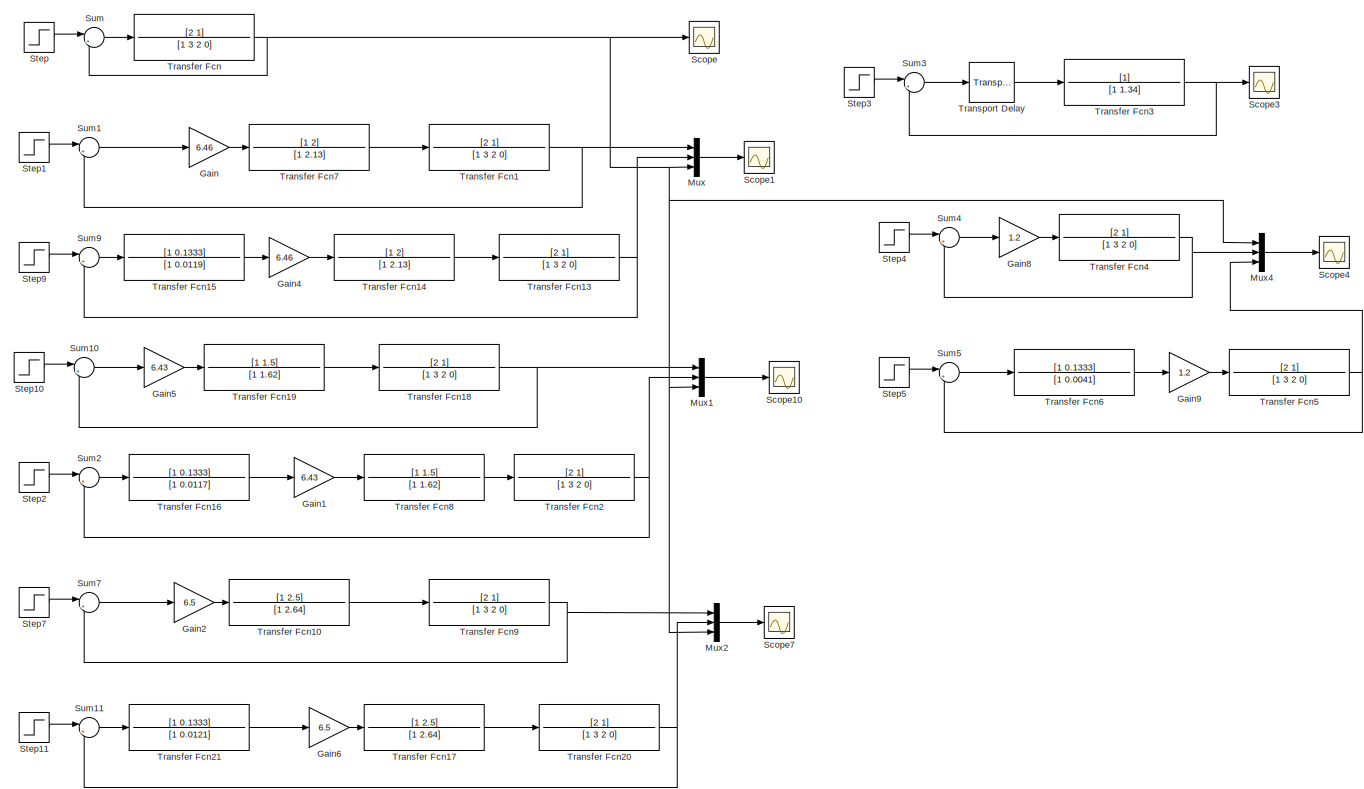
[diagram: root canvas - part 1/2, full width, middle band]
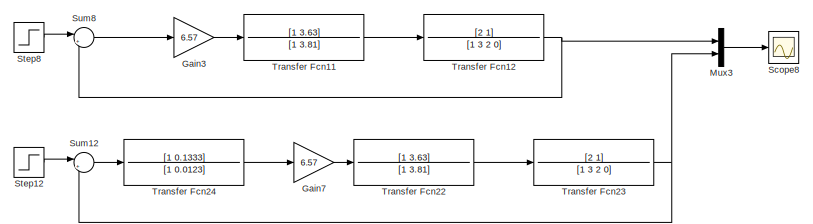
[diagram: root canvas - part 2/2, bottom left region]
MODEL slx_bb2af71fc459
KIND model
CONFIG AbsTol = auto
CONFIG EnableMultiTasking = off
CONFIG FixedStep = 0.001
CONFIG MaxStep = auto
CONFIG MinStep = auto
CONFIG RelTol = 1e-3
CONFIG SampleTimeConstraint = Unconstrained
CONFIG SolverName = FixedStepAuto
CONFIG StartTime = 0.0
CONFIG StopTime = 25
BLOCK [Gain] Gain
  Gain = 6.46
BLOCK [Gain] Gain1
  Gain = 6.43
BLOCK [Gain] Gain2
  Gain = 6.5
BLOCK [Gain] Gain3
  Gain = 6.57
BLOCK [Gain] Gain4
  Gain = 6.46
BLOCK [Gain] Gain5
  Gain = 6.43
BLOCK [Gain] Gain6
  Gain = 6.5
BLOCK [Gain] Gain7
  Gain = 6.57
BLOCK [Gain] Gain8
  Gain = 1.2
BLOCK [Gain] Gain9
  Gain = 1.2
BLOCK [Mux] Mux
  DisplayOption = bar
  Inputs = 3
BLOCK [Mux] Mux1
  DisplayOption = bar
  Inputs = 3
BLOCK [Mux] Mux2
  DisplayOption = bar
  Inputs = 3
BLOCK [Mux] Mux3
  DisplayOption = bar
  Inputs = 2
BLOCK [Mux] Mux4
  DisplayOption = bar
  Inputs = 3
BLOCK [Scope] Scope
  Floating = off
  NumInputPorts = 1
  ScopeSpecificationString = Simulink.scopes.TimeScopeBlockCfg('CurrentConfiguration', extmgr.ConfigurationSet(extmgr.Configuration('Core','General UI',true,'FigureColor',[1 1 1]),extmgr.Configuration('Core','Source UI',true),extmgr.Configuration('Sources','WiredSimulink',true),extmgr.Configuration('Visuals','Time Domain',true,'SerializedDisplays',{struct('MinYLimReal','-0.12498','MaxYLimReal','1.0929','YLabelReal','','MinYLi...<+1858ch>
BLOCK [Scope] Scope1
  Floating = off
  NumInputPorts = 1
  ScopeSpecificationString = Simulink.scopes.TimeScopeBlockCfg('CurrentConfiguration', extmgr.ConfigurationSet(extmgr.Configuration('Core','General UI',true,'FigureColor',[1 1 1]),extmgr.Configuration('Core','Source UI',true),extmgr.Configuration('Sources','WiredSimulink',true,'DataLoggingVariableName','ScopeData1'),extmgr.Configuration('Visuals','Time Domain',true,'SerializedDisplays',{struct('MinYLimReal','-0.15421','MaxYLi...<+1578ch>
BLOCK [Scope] Scope10
  Floating = off
  NumInputPorts = 1
  ScopeSpecificationString = Simulink.scopes.TimeScopeBlockCfg('CurrentConfiguration', extmgr.ConfigurationSet(extmgr.Configuration('Core','General UI',true,'FigureColor',[1 1 1]),extmgr.Configuration('Core','Source UI',true),extmgr.Configuration('Sources','WiredSimulink',true,'DataLoggingVariableName','ScopeData10'),extmgr.Configuration('Visuals','Time Domain',true,'SerializedDisplays',{struct('MinYLimReal','-0.15384','MaxYL...<+1579ch>
BLOCK [Scope] Scope3
  Floating = off
  NumInputPorts = 1
  ScopeSpecificationString = Simulink.scopes.TimeScopeBlockCfg('CurrentConfiguration', extmgr.ConfigurationSet(extmgr.Configuration('Core','General UI',true,'FigureColor',[1 1 1]),extmgr.Configuration('Core','Source UI',true),extmgr.Configuration('Sources','WiredSimulink',true,'DataLoggingVariableName','ScopeData3'),extmgr.Configuration('Visuals','Time Domain',true,'SerializedDisplays',{struct('MinYLimReal','-0.12498','MaxYLi...<+1899ch>
BLOCK [Scope] Scope4
  Floating = off
  NumInputPorts = 1
  ScopeSpecificationString = Simulink.scopes.TimeScopeBlockCfg('CurrentConfiguration', extmgr.ConfigurationSet(extmgr.Configuration('Core','General UI',true,'FigureColor',[1 1 1]),extmgr.Configuration('Core','Source UI',true),extmgr.Configuration('Sources','WiredSimulink',true,'DataLoggingVariableName','ScopeData1'),extmgr.Configuration('Visuals','Time Domain',true,'SerializedDisplays',{struct('MinYLimReal','-0.12498','MaxYLi...<+1623ch>
BLOCK [Scope] Scope7
  Floating = off
  NumInputPorts = 1
  ScopeSpecificationString = Simulink.scopes.TimeScopeBlockCfg('CurrentConfiguration', extmgr.ConfigurationSet(extmgr.Configuration('Core','General UI',true,'FigureColor',[1 1 1]),extmgr.Configuration('Core','Source UI',true),extmgr.Configuration('Sources','WiredSimulink',true,'DataLoggingVariableName','ScopeData7'),extmgr.Configuration('Visuals','Time Domain',true,'SerializedDisplays',{struct('MinYLimReal','-0.1546','MaxYLim...<+1576ch>
BLOCK [Scope] Scope8
  Floating = off
  NumInputPorts = 1
  ScopeSpecificationString = Simulink.scopes.TimeScopeBlockCfg('CurrentConfiguration', extmgr.ConfigurationSet(extmgr.Configuration('Core','General UI',true,'FigureColor',[1 1 1]),extmgr.Configuration('Core','Source UI',true),extmgr.Configuration('Sources','WiredSimulink',true,'DataLoggingVariableName','ScopeData8'),extmgr.Configuration('Visuals','Time Domain',true,'SerializedDisplays',{struct('MinYLimReal','-0.15505','MaxYLi...<+1579ch>
BLOCK [Step] Step
  SampleTime = 0
  Time = 0
BLOCK [Step] Step1
  SampleTime = 0
  Time = 0
BLOCK [Step] Step10
  SampleTime = 0
  Time = 0
BLOCK [Step] Step11
  SampleTime = 0
  Time = 0
BLOCK [Step] Step12
  SampleTime = 0
  Time = 0
BLOCK [Step] Step2
  SampleTime = 0
  Time = 0
BLOCK [Step] Step3
  SampleTime = 0
  Time = 0
BLOCK [Step] Step4
  SampleTime = 0
  Time = 0
BLOCK [Step] Step5
  SampleTime = 0
  Time = 0
BLOCK [Step] Step7
  SampleTime = 0
  Time = 0
BLOCK [Step] Step8
  SampleTime = 0
  Time = 0
BLOCK [Step] Step9
  SampleTime = 0
  Time = 0
BLOCK [Sum] Sum
  Inputs = |+-
BLOCK [Sum] Sum1
  Inputs = |+-
BLOCK [Sum] Sum10
  Inputs = |+-
BLOCK [Sum] Sum11
  Inputs = |+-
BLOCK [Sum] Sum12
  Inputs = |+-
BLOCK [Sum] Sum2
  Inputs = |+-
BLOCK [Sum] Sum3
  Inputs = |+-
BLOCK [Sum] Sum4
  Inputs = |+-
BLOCK [Sum] Sum5
  Inputs = |+-
BLOCK [Sum] Sum7
  Inputs = |+-
BLOCK [Sum] Sum8
  Inputs = |+-
BLOCK [Sum] Sum9
  Inputs = |+-
BLOCK [TransferFcn] Transfer Fcn
  Denominator = [1 3 2 0]
  Numerator = [2 1]
BLOCK [TransferFcn] Transfer Fcn1
  Denominator = [1 3 2 0]
  Numerator = [2 1]
BLOCK [TransferFcn] Transfer Fcn10
  Denominator = [1 2.64]
  Numerator = [1 2.5]
BLOCK [TransferFcn] Transfer Fcn11
  Denominator = [1 3.81]
  Numerator = [1 3.63]
BLOCK [TransferFcn] Transfer Fcn12
  Denominator = [1 3 2 0]
  Numerator = [2 1]
BLOCK [TransferFcn] Transfer Fcn13
  Denominator = [1 3 2 0]
  Numerator = [2 1]
BLOCK [TransferFcn] Transfer Fcn14
  Denominator = [1 2.13]
  Numerator = [1 2]
BLOCK [TransferFcn] Transfer Fcn15
  Denominator = [1 0.0119]
  Numerator = [1 0.1333]
BLOCK [TransferFcn] Transfer Fcn16
  Denominator = [1 0.0117]
  Numerator = [1 0.1333]
BLOCK [TransferFcn] Transfer Fcn17
  Denominator = [1 2.64]
  Numerator = [1 2.5]
BLOCK [TransferFcn] Transfer Fcn18
  Denominator = [1 3 2 0]
  Numerator = [2 1]
BLOCK [TransferFcn] Transfer Fcn19
  Denominator = [1 1.62]
  Numerator = [1 1.5]
BLOCK [TransferFcn] Transfer Fcn2
  Denominator = [1 3 2 0]
  Numerator = [2 1]
BLOCK [TransferFcn] Transfer Fcn20
  Denominator = [1 3 2 0]
  Numerator = [2 1]
BLOCK [TransferFcn] Transfer Fcn21
  Denominator = [1 0.0121]
  Numerator = [1 0.1333]
BLOCK [TransferFcn] Transfer Fcn22
  Denominator = [1 3.81]
  Numerator = [1 3.63]
BLOCK [TransferFcn] Transfer Fcn23
  Denominator = [1 3 2 0]
  Numerator = [2 1]
BLOCK [TransferFcn] Transfer Fcn24
  Denominator = [1 0.0123]
  Numerator = [1 0.1333]
BLOCK [TransferFcn] Transfer Fcn3
  Denominator = [1 1.34]
BLOCK [TransferFcn] Transfer Fcn4
  Denominator = [1 3 2 0]
  Numerator = [2 1]
BLOCK [TransferFcn] Transfer Fcn5
  Denominator = [1 3 2 0]
  Numerator = [2 1]
BLOCK [TransferFcn] Transfer Fcn6
  Denominator = [1 0.0041]
  Numerator = [1 0.1333]
BLOCK [TransferFcn] Transfer Fcn7
  Denominator = [1 2.13]
  Numerator = [1 2]
BLOCK [TransferFcn] Transfer Fcn8
  Denominator = [1 1.62]
  Numerator = [1 1.5]
BLOCK [TransferFcn] Transfer Fcn9
  Denominator = [1 3 2 0]
  Numerator = [2 1]
BLOCK [TransportDelay] Transport Delay
  DelayTime = 0.2
LINE Gain1:1 -> Transfer Fcn8:1
LINE Gain2:1 -> Transfer Fcn10:1
LINE Gain3:1 -> Transfer Fcn11:1
LINE Gain4:1 -> Transfer Fcn14:1
LINE Gain5:1 -> Transfer Fcn19:1
LINE Gain6:1 -> Transfer Fcn17:1
LINE Gain7:1 -> Transfer Fcn22:1
LINE Gain8:1 -> Transfer Fcn4:1
LINE Gain9:1 -> Transfer Fcn5:1
LINE Gain:1 -> Transfer Fcn7:1
LINE Mux1:1 -> Scope10:1
LINE Mux2:1 -> Scope7:1
LINE Mux3:1 -> Scope8:1
LINE Mux4:1 -> Scope4:1
LINE Mux:1 -> Scope1:1
LINE Step10:1 -> Sum10:1
LINE Step11:1 -> Sum11:1
LINE Step12:1 -> Sum12:1
LINE Step1:1 -> Sum1:1
LINE Step2:1 -> Sum2:1
LINE Step3:1 -> Sum3:1
LINE Step4:1 -> Sum4:1
LINE Step5:1 -> Sum5:1
LINE Step7:1 -> Sum7:1
LINE Step8:1 -> Sum8:1
LINE Step9:1 -> Sum9:1
LINE Step:1 -> Sum:1
LINE Sum10:1 -> Gain5:1
LINE Sum11:1 -> Transfer Fcn21:1
LINE Sum12:1 -> Transfer Fcn24:1
LINE Sum1:1 -> Gain:1
LINE Sum2:1 -> Transfer Fcn16:1
LINE Sum3:1 -> Transport Delay:1
LINE Sum4:1 -> Gain8:1
LINE Sum5:1 -> Transfer Fcn6:1
LINE Sum7:1 -> Gain2:1
LINE Sum8:1 -> Gain3:1
LINE Sum9:1 -> Transfer Fcn15:1
LINE Sum:1 -> Transfer Fcn:1
LINE Transfer Fcn10:1 -> Transfer Fcn9:1
LINE Transfer Fcn11:1 -> Transfer Fcn12:1
NET Transfer Fcn12:1 -> Mux3:1, Sum8:2
NET Transfer Fcn13:1 -> Mux:2, Sum9:2
LINE Transfer Fcn14:1 -> Transfer Fcn13:1
LINE Transfer Fcn15:1 -> Gain4:1
LINE Transfer Fcn16:1 -> Gain1:1
LINE Transfer Fcn17:1 -> Transfer Fcn20:1
NET Transfer Fcn18:1 -> Mux1:1, Sum10:2
LINE Transfer Fcn19:1 -> Transfer Fcn18:1
NET Transfer Fcn1:1 -> Mux:1, Sum1:2
NET Transfer Fcn20:1 -> Mux2:2, Sum11:2
LINE Transfer Fcn21:1 -> Gain6:1
LINE Transfer Fcn22:1 -> Transfer Fcn23:1
NET Transfer Fcn23:1 -> Mux3:2, Sum12:2
LINE Transfer Fcn24:1 -> Gain7:1
NET Transfer Fcn2:1 -> Mux1:2, Sum2:2
NET Transfer Fcn3:1 -> Scope3:1, Sum3:2
NET Transfer Fcn4:1 -> Mux4:2, Sum4:2
NET Transfer Fcn5:1 -> Mux4:3, Sum5:2
LINE Transfer Fcn6:1 -> Gain9:1
LINE Transfer Fcn7:1 -> Transfer Fcn1:1
LINE Transfer Fcn8:1 -> Transfer Fcn2:1
NET Transfer Fcn9:1 -> Mux2:1, Sum7:2
NET Transfer Fcn:1 -> Mux1:3, Mux2:3, Mux4:1, Mux:3, Scope:1, Sum:2
LINE Transport Delay:1 -> Transfer Fcn3:1
note: NET lines group one-source signal fan-out (src -> all destinations, sorted); 1:1 wires keep LINE
